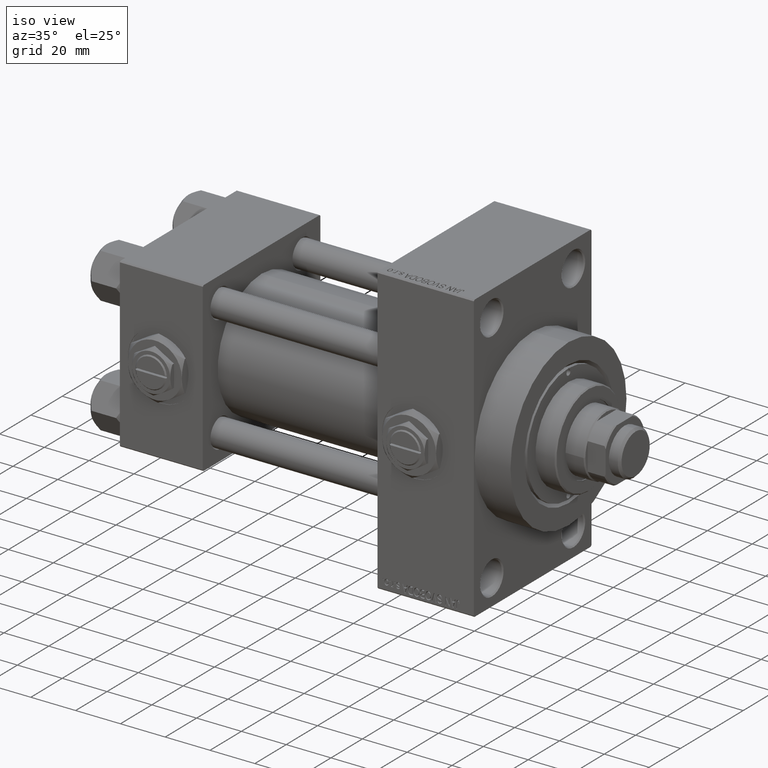
[diagram: clean part render]
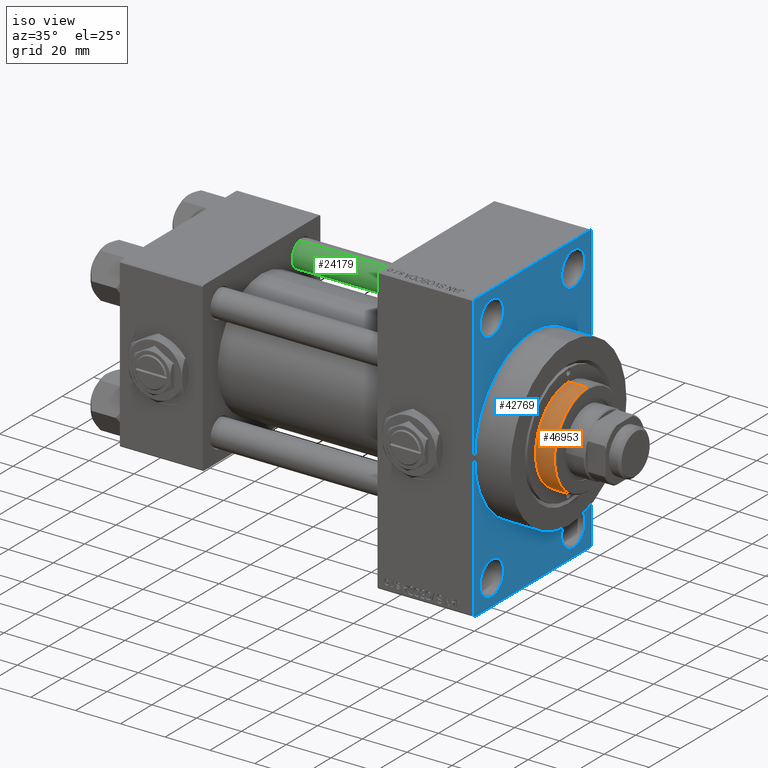
[diagram: same view with three faces highlighted in distinct colors, each labeled with its STEP entity id]
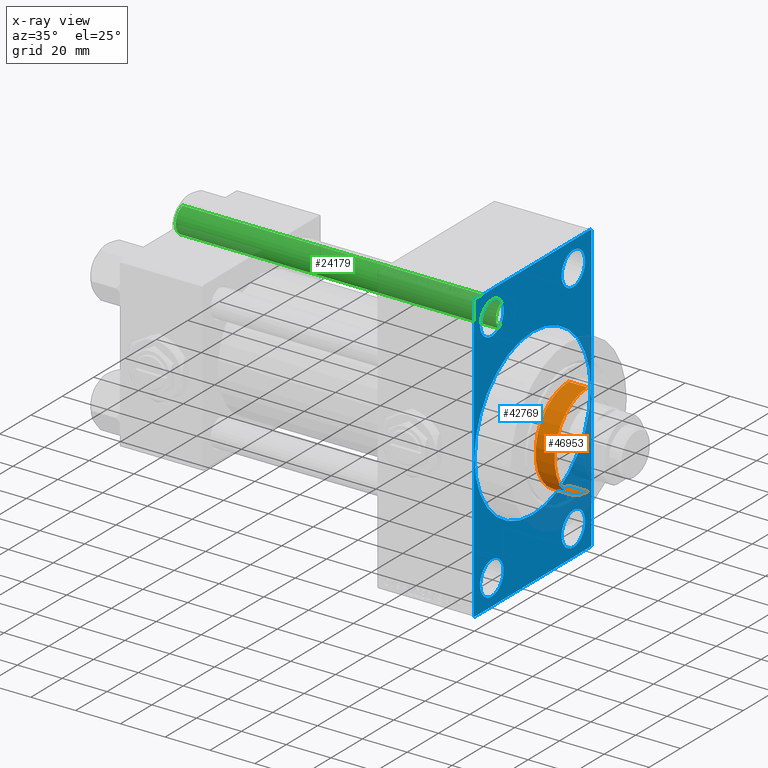
[diagram: x-ray of the same camera — body ghosted, the three highlighted faces saturated]
A machine part, iso view with three faces highlighted in distinct colors.
The next image is the same camera in x-ray (body ghosted, the three faces saturated) — at least one of them is partly hidden behind the body in this view.
Their STEP definitions:

[orange] entity #46953 — the highlighted cylindrical surface (partial cylindrical patch) has radius 21 mm, axis along (-1, 0, 0).
#612 = LINE ( 'NONE', #43898, #29673 ) ;
#869 = DIRECTION ( 'NONE',  ( -0.000000000000000000, -0.000000000000000000, -1.000000000000000000 ) ) ;
#3491 = FACE_OUTER_BOUND ( 'NONE', #41921, .T. ) ;
#3925 = AXIS2_PLACEMENT_3D ( 'NONE', #4939, #48484, #32605 ) ;
#4680 = AXIS2_PLACEMENT_3D ( 'NONE', #42199, #45277, #38339 ) ;
#4939 = CARTESIAN_POINT ( 'NONE',  ( 0.000000000000000000, 0.000000000000000000, 43.25999999999999801 ) ) ;
#5222 = EDGE_CURVE ( 'NONE', #43310, #5671, #30919, .T. ) ;
#5671 = VERTEX_POINT ( 'NONE', #16522 ) ;
#10799 = ORIENTED_EDGE ( 'NONE', *, *, #15377, .F. ) ;
#11154 = LINE ( 'NONE', #37099, #42628 ) ;
#11549 = CARTESIAN_POINT ( 'NONE',  ( -21.00000000000000000, 0.000000000000000000, 51.75999999999999801 ) ) ;
#14135 = ORIENTED_EDGE ( 'NONE', *, *, #36062, .T. ) ;
#15249 = CYLINDRICAL_SURFACE ( 'NONE', #17135, 21.00000000000000000 ) ;
#15377 = EDGE_CURVE ( 'NONE', #47275, #5671, #11154, .T. ) ;
#16522 = CARTESIAN_POINT ( 'NONE',  ( -21.00000000000000000, 0.000000000000000000, 43.25999999999999801 ) ) ;
#17135 = AXIS2_PLACEMENT_3D ( 'NONE', #27047, #42935, #42696 ) ;
#23488 = EDGE_CURVE ( 'NONE', #45340, #43310, #612, .T. ) ;
#24321 = CIRCLE ( 'NONE', #4680, 21.00000000000000000 ) ;
#27047 = CARTESIAN_POINT ( 'NONE',  ( 0.000000000000000000, 0.000000000000000000, 52.25999999999999801 ) ) ;
#29673 = VECTOR ( 'NONE', #869, 1000.000000000000000 ) ;
#30919 = CIRCLE ( 'NONE', #3925, 21.00000000000000000 ) ;
#32605 = DIRECTION ( 'NONE',  ( 1.000000000000000000, 0.000000000000000000, 0.000000000000000000 ) ) ;
#36062 = EDGE_CURVE ( 'NONE', #47275, #45340, #24321, .T. ) ;
#37099 = CARTESIAN_POINT ( 'NONE',  ( -21.00000000000000000, 0.000000000000000000, 52.25999999999999801 ) ) ;
#38339 = DIRECTION ( 'NONE',  ( 1.000000000000000000, 0.000000000000000000, 0.000000000000000000 ) ) ;
#39316 = CARTESIAN_POINT ( 'NONE',  ( 21.00000000000000000, 2.571758278209441661E-15, 43.25999999999999801 ) ) ;
#39932 = ORIENTED_EDGE ( 'NONE', *, *, #5222, .T. ) ;
#41921 = EDGE_LOOP ( 'NONE', ( #14135, #49444, #39932, #10799 ) ) ;
#42199 = CARTESIAN_POINT ( 'NONE',  ( 0.000000000000000000, 0.000000000000000000, 51.75999999999999801 ) ) ;
#42628 = VECTOR ( 'NONE', #50106, 1000.000000000000000 ) ;
#42696 = DIRECTION ( 'NONE',  ( -1.000000000000000000, 0.000000000000000000, 0.000000000000000000 ) ) ;
#42935 = DIRECTION ( 'NONE',  ( -0.000000000000000000, -0.000000000000000000, -1.000000000000000000 ) ) ;
#43310 = VERTEX_POINT ( 'NONE', #39316 ) ;
#43898 = CARTESIAN_POINT ( 'NONE',  ( 21.00000000000000000, 2.571758278209441661E-15, 52.25999999999999801 ) ) ;
#44420 = CARTESIAN_POINT ( 'NONE',  ( 21.00000000000000000, 2.571758278209441661E-15, 51.75999999999999801 ) ) ;
#45277 = DIRECTION ( 'NONE',  ( 0.000000000000000000, 0.000000000000000000, -1.000000000000000000 ) ) ;
#45340 = VERTEX_POINT ( 'NONE', #44420 ) ;
#46953 = ADVANCED_FACE ( 'NONE', ( #3491 ), #15249, .T. ) ;
#47275 = VERTEX_POINT ( 'NONE', #11549 ) ;
#48484 = DIRECTION ( 'NONE',  ( 0.000000000000000000, 0.000000000000000000, 1.000000000000000000 ) ) ;
#49444 = ORIENTED_EDGE ( 'NONE', *, *, #23488, .T. ) ;
#50106 = DIRECTION ( 'NONE',  ( -0.000000000000000000, -0.000000000000000000, -1.000000000000000000 ) ) ;

[blue] entity #42769 — the highlighted planar face has unit normal (-1, 0, 0).
#70 = EDGE_CURVE ( 'NONE', #22367, #42878, #22077, .T. ) ;
#457 = VECTOR ( 'NONE', #2362, 999.9999999999998863 ) ;
#739 = DIRECTION ( 'NONE',  ( -1.000000000000000000, 0.000000000000000000, -0.000000000000000000 ) ) ;
#1179 = CARTESIAN_POINT ( 'NONE',  ( 157.9999999999999716, 26.00000000000000000, -59.99999999999994316 ) ) ;
#1240 = CARTESIAN_POINT ( 'NONE',  ( 157.9999999999999716, 37.49999999999999289, -63.50000000000001421 ) ) ;
#1386 = LINE ( 'NONE', #28789, #33546 ) ;
#1840 = ORIENTED_EDGE ( 'NONE', *, *, #14234, .T. ) ;
#2058 = CIRCLE ( 'NONE', #33959, 7.499999999999951150 ) ;
#2362 = DIRECTION ( 'NONE',  ( -0.000000000000000000, -0.7071067811865525687, -0.7071067811865425767 ) ) ;
#2478 = VERTEX_POINT ( 'NONE', #48853 ) ;
#2525 = CARTESIAN_POINT ( 'NONE',  ( 157.9999999999999716, -25.99999999999999645, -59.99999999999994316 ) ) ;
#2792 = VERTEX_POINT ( 'NONE', #8590 ) ;
#4766 = CARTESIAN_POINT ( 'NONE',  ( 157.9999999999999716, 26.00000000000000000, -52.49999999999999289 ) ) ;
#5097 = CARTESIAN_POINT ( 'NONE',  ( 157.9999999999999716, 4.531193156845206793E-15, -37.00000000000000000 ) ) ;
#5328 = ORIENTED_EDGE ( 'NONE', *, *, #13887, .T. ) ;
#5749 = CIRCLE ( 'NONE', #28673, 37.00000000000000000 ) ;
#5852 = FACE_BOUND ( 'NONE', #23341, .T. ) ;
#5919 = LINE ( 'NONE', #48456, #40405 ) ;
#6576 = VERTEX_POINT ( 'NONE', #1240 ) ;
#6642 = CARTESIAN_POINT ( 'NONE',  ( 157.9999999999999716, 0.000000000000000000, 0.000000000000000000 ) ) ;
#6840 = CARTESIAN_POINT ( 'NONE',  ( 157.9999999999999716, 26.00000000000000000, -52.49999999999999289 ) ) ;
#6998 = VERTEX_POINT ( 'NONE', #31926 ) ;
#7129 = CARTESIAN_POINT ( 'NONE',  ( 157.9999999999999716, 37.49999999999999289, -63.50000000000001421 ) ) ;
#8546 = CARTESIAN_POINT ( 'NONE',  ( 157.9999999999999716, -25.99999999999999645, 59.99999999999995026 ) ) ;
#8590 = CARTESIAN_POINT ( 'NONE',  ( 157.9999999999999716, 0.000000000000000000, 37.00000000000000000 ) ) ;
#9198 = FACE_BOUND ( 'NONE', #25366, .T. ) ;
#9595 = VERTEX_POINT ( 'NONE', #5097 ) ;
#9732 = VERTEX_POINT ( 'NONE', #2525 ) ;
#9919 = DIRECTION ( 'NONE',  ( 0.000000000000000000, 0.000000000000000000, 1.000000000000000000 ) ) ;
#10193 = EDGE_CURVE ( 'NONE', #29108, #29204, #1386, .T. ) ;
#10225 = DIRECTION ( 'NONE',  ( 1.000000000000000000, 0.000000000000000000, 0.000000000000000000 ) ) ;
#10830 = ORIENTED_EDGE ( 'NONE', *, *, #70, .T. ) ;
#11359 = EDGE_LOOP ( 'NONE', ( #42216, #44822 ) ) ;
#12282 = AXIS2_PLACEMENT_3D ( 'NONE', #32248, #739, #15408 ) ;
#12583 = CARTESIAN_POINT ( 'NONE',  ( 157.9999999999999716, -25.99999999999999645, 52.50000000000000000 ) ) ;
#12883 = ORIENTED_EDGE ( 'NONE', *, *, #28407, .T. ) ;
#12942 = DIRECTION ( 'NONE',  ( 0.000000000000000000, 0.000000000000000000, 1.000000000000000000 ) ) ;
#13232 = EDGE_CURVE ( 'NONE', #48193, #13374, #37628, .T. ) ;
#13374 = VERTEX_POINT ( 'NONE', #1179 ) ;
#13887 = EDGE_CURVE ( 'NONE', #23600, #46910, #31925, .T. ) ;
#14234 = EDGE_CURVE ( 'NONE', #6998, #9732, #38475, .T. ) ;
#14257 = ORIENTED_EDGE ( 'NONE', *, *, #21629, .F. ) ;
#14651 = ORIENTED_EDGE ( 'NONE', *, *, #42372, .F. ) ;
#14795 = VERTEX_POINT ( 'NONE', #19266 ) ;
#14901 = CARTESIAN_POINT ( 'NONE',  ( 157.9999999999999716, -37.49999999999999289, 63.49999999999997158 ) ) ;
#15408 = DIRECTION ( 'NONE',  ( 0.000000000000000000, 0.000000000000000000, 1.000000000000000000 ) ) ;
#15811 = DIRECTION ( 'NONE',  ( 0.000000000000000000, -1.000000000000000000, -1.850371707708594563E-16 ) ) ;
#16370 = AXIS2_PLACEMENT_3D ( 'NONE', #48060, #21142, #12942 ) ;
#16418 = AXIS2_PLACEMENT_3D ( 'NONE', #12583, #28217, #43852 ) ;
#16610 = FACE_OUTER_BOUND ( 'NONE', #42020, .T. ) ;
#16850 = DIRECTION ( 'NONE',  ( 0.000000000000000000, 0.000000000000000000, 1.000000000000000000 ) ) ;
#17602 = VECTOR ( 'NONE', #15811, 1000.000000000000000 ) ;
#18602 = AXIS2_PLACEMENT_3D ( 'NONE', #40194, #20709, #16850 ) ;
#18639 = EDGE_CURVE ( 'NONE', #9595, #2792, #5749, .T. ) ;
#18653 = ORIENTED_EDGE ( 'NONE', *, *, #37813, .T. ) ;
#18831 = DIRECTION ( 'NONE',  ( 0.000000000000000000, -5.421010862427522170E-17, -1.000000000000000000 ) ) ;
#19266 = CARTESIAN_POINT ( 'NONE',  ( 157.9999999999999716, -37.49999999999999289, -63.49999999999997158 ) ) ;
#19629 = CARTESIAN_POINT ( 'NONE',  ( 157.9999999999999716, 26.00000000000000000, 52.49999999999999289 ) ) ;
#19727 = ORIENTED_EDGE ( 'NONE', *, *, #34836, .F. ) ;
#19835 = LINE ( 'NONE', #22930, #37470 ) ;
#20481 = EDGE_CURVE ( 'NONE', #42528, #29054, #36117, .T. ) ;
#20709 = DIRECTION ( 'NONE',  ( -1.000000000000000000, 0.000000000000000000, -0.000000000000000000 ) ) ;
#21142 = DIRECTION ( 'NONE',  ( -1.000000000000000000, 0.000000000000000000, -0.000000000000000000 ) ) ;
#21215 = FACE_BOUND ( 'NONE', #28208, .T. ) ;
#21480 = PLANE ( 'NONE',  #24384 ) ;
#21501 = CARTESIAN_POINT ( 'NONE',  ( 157.9999999999999716, 0.000000000000000000, 0.000000000000000000 ) ) ;
#21542 = DIRECTION ( 'NONE',  ( 0.000000000000000000, 0.7071067811865378028, -0.7071067811865573427 ) ) ;
#21629 = EDGE_CURVE ( 'NONE', #29108, #6576, #49588, .T. ) ;
#22077 = LINE ( 'NONE', #14901, #457 ) ;
#22138 = CIRCLE ( 'NONE', #16418, 7.499999999999951150 ) ;
#22143 = ORIENTED_EDGE ( 'NONE', *, *, #45664, .T. ) ;
#22180 = CARTESIAN_POINT ( 'NONE',  ( 157.9999999999999716, 37.50000000000000000, 63.99999999999998579 ) ) ;
#22367 = VERTEX_POINT ( 'NONE', #32358 ) ;
#22930 = CARTESIAN_POINT ( 'NONE',  ( 157.9999999999999716, 37.49999999999999289, -64.00000000000000000 ) ) ;
#23341 = EDGE_LOOP ( 'NONE', ( #19727, #26502 ) ) ;
#23507 = CARTESIAN_POINT ( 'NONE',  ( 157.9999999999999716, 37.50000000000000000, 63.99999999999998579 ) ) ;
#23600 = VERTEX_POINT ( 'NONE', #8546 ) ;
#24290 = CARTESIAN_POINT ( 'NONE',  ( 157.9999999999999716, 26.00000000000000000, -45.00000000000004263 ) ) ;
#24384 = AXIS2_PLACEMENT_3D ( 'NONE', #37097, #32261, #28405 ) ;
#24623 = ORIENTED_EDGE ( 'NONE', *, *, #33448, .T. ) ;
#25366 = EDGE_LOOP ( 'NONE', ( #41214, #5328 ) ) ;
#26160 = AXIS2_PLACEMENT_3D ( 'NONE', #4766, #27564, #35513 ) ;
#26334 = DIRECTION ( 'NONE',  ( -1.000000000000000000, 0.000000000000000000, -0.000000000000000000 ) ) ;
#26502 = ORIENTED_EDGE ( 'NONE', *, *, #18639, .F. ) ;
#26593 = LINE ( 'NONE', #7129, #27844 ) ;
#27207 = CARTESIAN_POINT ( 'NONE',  ( 157.9999999999999716, 26.00000000000000000, 59.99999999999994316 ) ) ;
#27249 = ORIENTED_EDGE ( 'NONE', *, *, #13232, .T. ) ;
#27564 = DIRECTION ( 'NONE',  ( -1.000000000000000000, 0.000000000000000000, -0.000000000000000000 ) ) ;
#27569 = DIRECTION ( 'NONE',  ( 0.000000000000000000, 0.000000000000000000, -1.000000000000000000 ) ) ;
#27844 = VECTOR ( 'NONE', #49659, 1000.000000000000114 ) ;
#28155 = ORIENTED_EDGE ( 'NONE', *, *, #41334, .T. ) ;
#28208 = EDGE_LOOP ( 'NONE', ( #18653, #1840 ) ) ;
#28217 = DIRECTION ( 'NONE',  ( -1.000000000000000000, 0.000000000000000000, -0.000000000000000000 ) ) ;
#28405 = DIRECTION ( 'NONE',  ( -0.000000000000000000, 0.000000000000000000, 1.000000000000000000 ) ) ;
#28407 = EDGE_CURVE ( 'NONE', #42878, #14795, #35278, .T. ) ;
#28459 = EDGE_CURVE ( 'NONE', #29054, #42528, #2058, .T. ) ;
#28673 = AXIS2_PLACEMENT_3D ( 'NONE', #6642, #10225, #49162 ) ;
#28789 = CARTESIAN_POINT ( 'NONE',  ( 157.9999999999999716, 37.00000000000000000, 63.99999999999998579 ) ) ;
#29054 = VERTEX_POINT ( 'NONE', #27207 ) ;
#29108 = VERTEX_POINT ( 'NONE', #44352 ) ;
#29204 = VERTEX_POINT ( 'NONE', #45112 ) ;
#29289 = DIRECTION ( 'NONE',  ( 0.000000000000000000, -0.7071067811865474617, 0.7071067811865474617 ) ) ;
#30086 = EDGE_CURVE ( 'NONE', #14795, #2478, #5919, .T. ) ;
#31102 = EDGE_LOOP ( 'NONE', ( #28155, #27249 ) ) ;
#31925 = CIRCLE ( 'NONE', #12282, 7.499999999999951150 ) ;
#31926 = CARTESIAN_POINT ( 'NONE',  ( 157.9999999999999716, -25.99999999999999645, -45.00000000000004263 ) ) ;
#32248 = CARTESIAN_POINT ( 'NONE',  ( 157.9999999999999716, -25.99999999999999645, 52.50000000000000000 ) ) ;
#32261 = DIRECTION ( 'NONE',  ( -1.000000000000000000, 0.000000000000000000, -0.000000000000000000 ) ) ;
#32358 = CARTESIAN_POINT ( 'NONE',  ( 157.9999999999999716, -36.99999999999998579, 63.99999999999997158 ) ) ;
#33448 = EDGE_CURVE ( 'NONE', #29204, #22367, #38637, .T. ) ;
#33546 = VECTOR ( 'NONE', #29289, 1000.000000000000114 ) ;
#33959 = AXIS2_PLACEMENT_3D ( 'NONE', #19629, #42968, #35518 ) ;
#34109 = CARTESIAN_POINT ( 'NONE',  ( 157.9999999999999716, 37.00000000000002132, -64.00000000000000000 ) ) ;
#34504 = CARTESIAN_POINT ( 'NONE',  ( 157.9999999999999716, -25.99999999999999645, 45.00000000000004974 ) ) ;
#34510 = ORIENTED_EDGE ( 'NONE', *, *, #10193, .T. ) ;
#34836 = EDGE_CURVE ( 'NONE', #2792, #9595, #41403, .T. ) ;
#35278 = LINE ( 'NONE', #38859, #42155 ) ;
#35513 = DIRECTION ( 'NONE',  ( 0.000000000000000000, 0.000000000000000000, 1.000000000000000000 ) ) ;
#35518 = DIRECTION ( 'NONE',  ( 0.000000000000000000, 0.000000000000000000, 1.000000000000000000 ) ) ;
#36117 = CIRCLE ( 'NONE', #44308, 7.499999999999951150 ) ;
#36494 = AXIS2_PLACEMENT_3D ( 'NONE', #21501, #44568, #47903 ) ;
#37097 = CARTESIAN_POINT ( 'NONE',  ( 157.9999999999999716, 0.000000000000000000, 0.000000000000000000 ) ) ;
#37219 = CARTESIAN_POINT ( 'NONE',  ( 157.9999999999999716, 26.00000000000000000, 45.00000000000004263 ) ) ;
#37335 = DIRECTION ( 'NONE',  ( 0.000000000000000000, 0.000000000000000000, 1.000000000000000000 ) ) ;
#37470 = VECTOR ( 'NONE', #42672, 1000.000000000000000 ) ;
#37628 = CIRCLE ( 'NONE', #26160, 7.499999999999951150 ) ;
#37792 = VECTOR ( 'NONE', #18831, 1000.000000000000000 ) ;
#37813 = EDGE_CURVE ( 'NONE', #9732, #6998, #43993, .T. ) ;
#37837 = DIRECTION ( 'NONE',  ( -1.000000000000000000, 0.000000000000000000, -0.000000000000000000 ) ) ;
#38475 = CIRCLE ( 'NONE', #16370, 7.499999999999951150 ) ;
#38637 = LINE ( 'NONE', #23507, #17602 ) ;
#38859 = CARTESIAN_POINT ( 'NONE',  ( 157.9999999999999716, -37.49999999999999289, 63.99999999999997158 ) ) ;
#40194 = CARTESIAN_POINT ( 'NONE',  ( 157.9999999999999716, -25.99999999999999645, -52.49999999999999289 ) ) ;
#40405 = VECTOR ( 'NONE', #21542, 1000.000000000000000 ) ;
#40440 = FACE_BOUND ( 'NONE', #11359, .T. ) ;
#41214 = ORIENTED_EDGE ( 'NONE', *, *, #49784, .T. ) ;
#41334 = EDGE_CURVE ( 'NONE', #13374, #48193, #41541, .T. ) ;
#41403 = CIRCLE ( 'NONE', #36494, 37.00000000000000000 ) ;
#41541 = CIRCLE ( 'NONE', #49851, 7.499999999999951150 ) ;
#42020 = EDGE_LOOP ( 'NONE', ( #12883, #42200, #14651, #22143, #14257, #34510, #24623, #10830 ) ) ;
#42155 = VECTOR ( 'NONE', #27569, 1000.000000000000000 ) ;
#42200 = ORIENTED_EDGE ( 'NONE', *, *, #30086, .T. ) ;
#42216 = ORIENTED_EDGE ( 'NONE', *, *, #20481, .T. ) ;
#42372 = EDGE_CURVE ( 'NONE', #50249, #2478, #19835, .T. ) ;
#42528 = VERTEX_POINT ( 'NONE', #37219 ) ;
#42672 = DIRECTION ( 'NONE',  ( 0.000000000000000000, -1.000000000000000000, -1.850371707708594563E-16 ) ) ;
#42769 = ADVANCED_FACE ( 'NONE', ( #9198, #21215, #44792, #40440, #5852, #16610 ), #21480, .F. ) ;
#42878 = VERTEX_POINT ( 'NONE', #45820 ) ;
#42968 = DIRECTION ( 'NONE',  ( -1.000000000000000000, 0.000000000000000000, -0.000000000000000000 ) ) ;
#43852 = DIRECTION ( 'NONE',  ( 0.000000000000000000, 0.000000000000000000, 1.000000000000000000 ) ) ;
#43993 = CIRCLE ( 'NONE', #18602, 7.499999999999951150 ) ;
#44308 = AXIS2_PLACEMENT_3D ( 'NONE', #49639, #26334, #37335 ) ;
#44352 = CARTESIAN_POINT ( 'NONE',  ( 157.9999999999999716, 37.50000000000000000, 63.49999999999998579 ) ) ;
#44568 = DIRECTION ( 'NONE',  ( 1.000000000000000000, 0.000000000000000000, 0.000000000000000000 ) ) ;
#44792 = FACE_BOUND ( 'NONE', #31102, .T. ) ;
#44822 = ORIENTED_EDGE ( 'NONE', *, *, #28459, .T. ) ;
#45112 = CARTESIAN_POINT ( 'NONE',  ( 157.9999999999999716, 37.00000000000000000, 63.99999999999998579 ) ) ;
#45664 = EDGE_CURVE ( 'NONE', #50249, #6576, #26593, .T. ) ;
#45820 = CARTESIAN_POINT ( 'NONE',  ( 157.9999999999999716, -37.49999999999999289, 63.49999999999997158 ) ) ;
#46910 = VERTEX_POINT ( 'NONE', #34504 ) ;
#47903 = DIRECTION ( 'NONE',  ( 0.000000000000000000, 0.000000000000000000, -1.000000000000000000 ) ) ;
#48060 = CARTESIAN_POINT ( 'NONE',  ( 157.9999999999999716, -25.99999999999999645, -52.49999999999999289 ) ) ;
#48193 = VERTEX_POINT ( 'NONE', #24290 ) ;
#48456 = CARTESIAN_POINT ( 'NONE',  ( 157.9999999999999716, -36.99999999999996447, -64.00000000000001421 ) ) ;
#48853 = CARTESIAN_POINT ( 'NONE',  ( 157.9999999999999716, -36.99999999999996447, -64.00000000000001421 ) ) ;
#49162 = DIRECTION ( 'NONE',  ( 0.000000000000000000, 0.000000000000000000, -1.000000000000000000 ) ) ;
#49588 = LINE ( 'NONE', #22180, #37792 ) ;
#49639 = CARTESIAN_POINT ( 'NONE',  ( 157.9999999999999716, 26.00000000000000000, 52.49999999999999289 ) ) ;
#49659 = DIRECTION ( 'NONE',  ( -0.000000000000000000, 0.7071067811865376918, 0.7071067811865573427 ) ) ;
#49784 = EDGE_CURVE ( 'NONE', #46910, #23600, #22138, .T. ) ;
#49851 = AXIS2_PLACEMENT_3D ( 'NONE', #6840, #37837, #9919 ) ;
#50249 = VERTEX_POINT ( 'NONE', #34109 ) ;

[green] entity #24179 — the highlighted cylindrical surface (edge-blend (fillet) strip) has radius 6 mm, axis along (-1, -0, 0).
#156 = ORIENTED_EDGE ( 'NONE', *, *, #19791, .T. ) ;
#2390 = DIRECTION ( 'NONE',  ( -0.000000000000000000, -0.000000000000000000, 1.000000000000000000 ) ) ;
#2550 = CARTESIAN_POINT ( 'NONE',  ( -6.000000000000000888, 0.000000000000000000, 0.5000000000000004441 ) ) ;
#2636 = DIRECTION ( 'NONE',  ( 0.000000000000000000, 0.000000000000000000, -1.000000000000000000 ) ) ;
#2983 = EDGE_CURVE ( 'NONE', #26869, #8212, #4381, .T. ) ;
#4381 = LINE ( 'NONE', #19991, #18543 ) ;
#4583 = DIRECTION ( 'NONE',  ( -0.000000000000000000, -0.000000000000000000, -1.000000000000000000 ) ) ;
#8212 = VERTEX_POINT ( 'NONE', #50085 ) ;
#10826 = CARTESIAN_POINT ( 'NONE',  ( 0.000000000000000000, 0.000000000000000000, 143.5000000000000000 ) ) ;
#15406 = VERTEX_POINT ( 'NONE', #29156 ) ;
#16600 = CARTESIAN_POINT ( 'NONE',  ( 0.000000000000000000, 0.000000000000000000, 144.0000000000000000 ) ) ;
#17341 = EDGE_CURVE ( 'NONE', #15406, #39956, #17684, .T. ) ;
#17684 = LINE ( 'NONE', #37426, #34376 ) ;
#17807 = ORIENTED_EDGE ( 'NONE', *, *, #2983, .F. ) ;
#18543 = VECTOR ( 'NONE', #23595, 1000.000000000000000 ) ;
#19791 = EDGE_CURVE ( 'NONE', #26869, #15406, #38526, .T. ) ;
#19991 = CARTESIAN_POINT ( 'NONE',  ( 6.000000000000000888, 7.347880794884120722E-16, 144.0000000000000000 ) ) ;
#23595 = DIRECTION ( 'NONE',  ( -0.000000000000000000, -0.000000000000000000, -1.000000000000000000 ) ) ;
#24049 = FACE_OUTER_BOUND ( 'NONE', #45587, .T. ) ;
#24179 = ADVANCED_FACE ( 'NONE', ( #24049 ), #39676, .T. ) ;
#26448 = DIRECTION ( 'NONE',  ( 1.000000000000000000, 0.000000000000000000, 0.000000000000000000 ) ) ;
#26869 = VERTEX_POINT ( 'NONE', #42467 ) ;
#27247 = AXIS2_PLACEMENT_3D ( 'NONE', #16600, #4583, #32250 ) ;
#29156 = CARTESIAN_POINT ( 'NONE',  ( -6.000000000000000888, 0.000000000000000000, 143.5000000000000000 ) ) ;
#32250 = DIRECTION ( 'NONE',  ( -1.000000000000000000, 0.000000000000000000, 0.000000000000000000 ) ) ;
#33136 = CARTESIAN_POINT ( 'NONE',  ( 0.000000000000000000, 0.000000000000000000, 0.5000000000000004441 ) ) ;
#34376 = VECTOR ( 'NONE', #45384, 1000.000000000000000 ) ;
#37426 = CARTESIAN_POINT ( 'NONE',  ( -6.000000000000000888, 0.000000000000000000, 144.0000000000000000 ) ) ;
#37832 = ORIENTED_EDGE ( 'NONE', *, *, #17341, .T. ) ;
#38217 = ORIENTED_EDGE ( 'NONE', *, *, #49540, .T. ) ;
#38526 = CIRCLE ( 'NONE', #39326, 6.000000000000000888 ) ;
#39326 = AXIS2_PLACEMENT_3D ( 'NONE', #10826, #2636, #26448 ) ;
#39676 = CYLINDRICAL_SURFACE ( 'NONE', #27247, 6.000000000000000888 ) ;
#39956 = VERTEX_POINT ( 'NONE', #2550 ) ;
#41790 = CIRCLE ( 'NONE', #49159, 6.000000000000000888 ) ;
#42467 = CARTESIAN_POINT ( 'NONE',  ( 6.000000000000000888, 7.347880794884120722E-16, 143.5000000000000000 ) ) ;
#45384 = DIRECTION ( 'NONE',  ( -0.000000000000000000, -0.000000000000000000, -1.000000000000000000 ) ) ;
#45587 = EDGE_LOOP ( 'NONE', ( #17807, #156, #37832, #38217 ) ) ;
#48758 = DIRECTION ( 'NONE',  ( 1.000000000000000000, 0.000000000000000000, 0.000000000000000000 ) ) ;
#49159 = AXIS2_PLACEMENT_3D ( 'NONE', #33136, #2390, #48758 ) ;
#49540 = EDGE_CURVE ( 'NONE', #39956, #8212, #41790, .T. ) ;
#50085 = CARTESIAN_POINT ( 'NONE',  ( 6.000000000000000888, 7.347880794884120722E-16, 0.5000000000000004441 ) ) ;